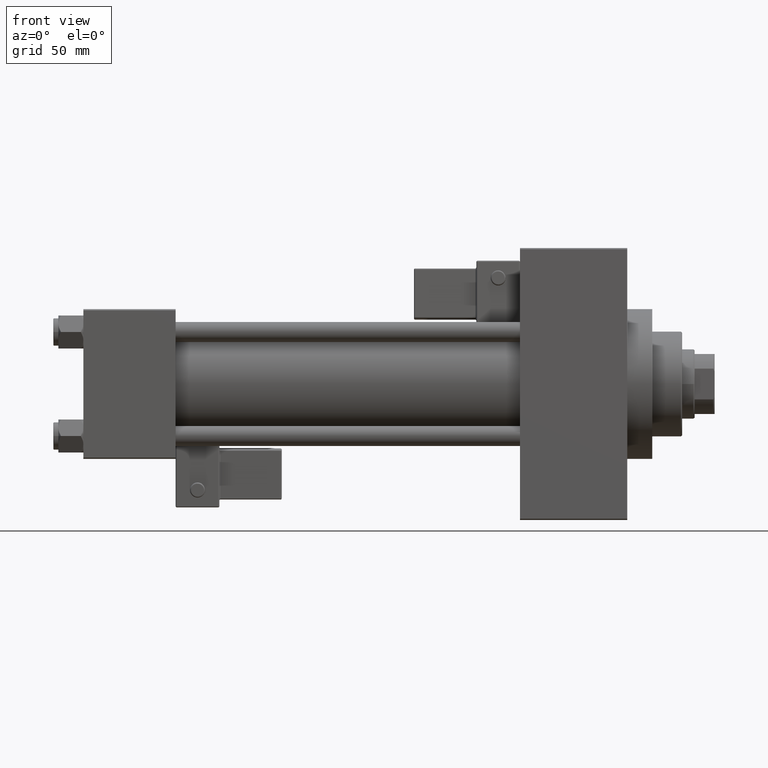
[diagram: clean part render]
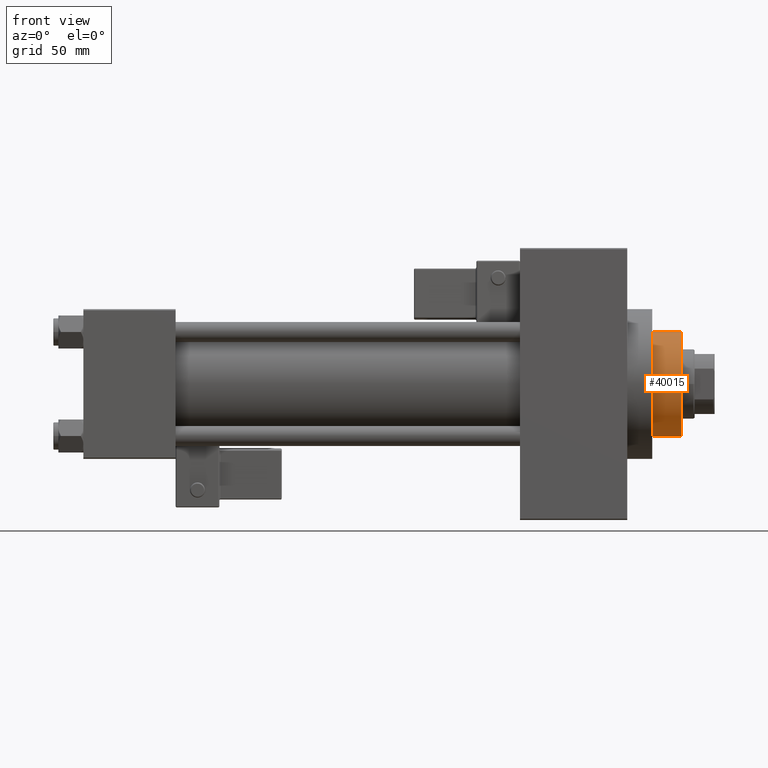
[diagram: same view with one face highlighted and labeled with its STEP entity id]
A machine part, front view. The second image highlights one B-rep face of the part: STEP entity #40015.
In plain terms, the highlighted cylindrical surface (partial cylindrical patch) has radius 21 mm, axis along (-1, 0, 0).
Its self-contained STEP definition (entity closure, byte-faithful):
#41 = VECTOR ( 'NONE', #47984, 1000.000000000000000 ) ;
#3482 = CARTESIAN_POINT ( 'NONE',  ( 0.000000000000000000, 0.000000000000000000, 55.26000000000000512 ) ) ;
#5403 = VERTEX_POINT ( 'NONE', #46979 ) ;
#6101 = ORIENTED_EDGE ( 'NONE', *, *, #31831, .T. ) ;
#6659 = VERTEX_POINT ( 'NONE', #28899 ) ;
#6997 = CYLINDRICAL_SURFACE ( 'NONE', #34660, 21.00000000000000000 ) ;
#8291 = VERTEX_POINT ( 'NONE', #9699 ) ;
#9006 = CARTESIAN_POINT ( 'NONE',  ( 0.000000000000000000, 0.000000000000000000, 54.75999999999999091 ) ) ;
#9680 = LINE ( 'NONE', #41088, #32086 ) ;
#9699 = CARTESIAN_POINT ( 'NONE',  ( -21.00000000000000000, 0.000000000000000000, 43.25999999999999801 ) ) ;
#10906 = EDGE_CURVE ( 'NONE', #37334, #5403, #44245, .T. ) ;
#12908 = AXIS2_PLACEMENT_3D ( 'NONE', #42739, #46773, #38479 ) ;
#13110 = CIRCLE ( 'NONE', #34767, 21.00000000000000000 ) ;
#14400 = CARTESIAN_POINT ( 'NONE',  ( 0.000000000000000000, 0.000000000000000000, 43.25999999999999801 ) ) ;
#16369 = AXIS2_PLACEMENT_3D ( 'NONE', #14400, #17926, #40304 ) ;
#16902 = CARTESIAN_POINT ( 'NONE',  ( -21.00000000000000000, 0.000000000000000000, 54.75999999999999091 ) ) ;
#16920 = ORIENTED_EDGE ( 'NONE', *, *, #43700, .T. ) ;
#17530 = EDGE_LOOP ( 'NONE', ( #43866, #6101, #23350, #41281, #16920, #39912 ) ) ;
#17926 = DIRECTION ( 'NONE',  ( 0.000000000000000000, 0.000000000000000000, 1.000000000000000000 ) ) ;
#20592 = DIRECTION ( 'NONE',  ( 1.000000000000000000, 0.000000000000000000, 0.000000000000000000 ) ) ;
#21507 = VERTEX_POINT ( 'NONE', #16902 ) ;
#23350 = ORIENTED_EDGE ( 'NONE', *, *, #37647, .T. ) ;
#24206 = VERTEX_POINT ( 'NONE', #27918 ) ;
#25558 = CARTESIAN_POINT ( 'NONE',  ( 20.96385542168674831, 1.231570484631382412, 43.25999999999999801 ) ) ;
#27918 = CARTESIAN_POINT ( 'NONE',  ( 21.00000000000000000, 2.571758278209441661E-15, 54.75999999999999091 ) ) ;
#28363 = DIRECTION ( 'NONE',  ( 0.000000000000000000, 0.000000000000000000, -1.000000000000000000 ) ) ;
#28899 = CARTESIAN_POINT ( 'NONE',  ( 21.00000000000000000, 2.571758278209441661E-15, 43.25999999999999801 ) ) ;
#29356 = CARTESIAN_POINT ( 'NONE',  ( -21.00000000000000000, 0.000000000000000000, 55.26000000000000512 ) ) ;
#30113 = FACE_OUTER_BOUND ( 'NONE', #17530, .T. ) ;
#31353 = AXIS2_PLACEMENT_3D ( 'NONE', #42089, #46111, #41342 ) ;
#31831 = EDGE_CURVE ( 'NONE', #24206, #6659, #9680, .T. ) ;
#32086 = VECTOR ( 'NONE', #36578, 1000.000000000000000 ) ;
#33695 = EDGE_CURVE ( 'NONE', #21507, #8291, #36417, .T. ) ;
#33810 = CIRCLE ( 'NONE', #31353, 21.00000000000000000 ) ;
#34660 = AXIS2_PLACEMENT_3D ( 'NONE', #3482, #41434, #48994 ) ;
#34767 = AXIS2_PLACEMENT_3D ( 'NONE', #9006, #28363, #20592 ) ;
#36417 = LINE ( 'NONE', #29356, #41 ) ;
#36578 = DIRECTION ( 'NONE',  ( -0.000000000000000000, -0.000000000000000000, -1.000000000000000000 ) ) ;
#37334 = VERTEX_POINT ( 'NONE', #25558 ) ;
#37647 = EDGE_CURVE ( 'NONE', #6659, #37334, #33810, .T. ) ;
#38479 = DIRECTION ( 'NONE',  ( 1.000000000000000000, 0.000000000000000000, 0.000000000000000000 ) ) ;
#39912 = ORIENTED_EDGE ( 'NONE', *, *, #33695, .F. ) ;
#40015 = ADVANCED_FACE ( 'NONE', ( #30113 ), #6997, .T. ) ;
#40304 = DIRECTION ( 'NONE',  ( 1.000000000000000000, 0.000000000000000000, 0.000000000000000000 ) ) ;
#41088 = CARTESIAN_POINT ( 'NONE',  ( 21.00000000000000000, 2.571758278209441661E-15, 55.26000000000000512 ) ) ;
#41281 = ORIENTED_EDGE ( 'NONE', *, *, #10906, .T. ) ;
#41342 = DIRECTION ( 'NONE',  ( 1.000000000000000000, 0.000000000000000000, 0.000000000000000000 ) ) ;
#41434 = DIRECTION ( 'NONE',  ( -0.000000000000000000, -0.000000000000000000, -1.000000000000000000 ) ) ;
#42089 = CARTESIAN_POINT ( 'NONE',  ( 0.000000000000000000, 0.000000000000000000, 43.25999999999999801 ) ) ;
#42739 = CARTESIAN_POINT ( 'NONE',  ( 0.000000000000000000, 0.000000000000000000, 43.25999999999999801 ) ) ;
#43146 = EDGE_CURVE ( 'NONE', #21507, #24206, #13110, .T. ) ;
#43700 = EDGE_CURVE ( 'NONE', #5403, #8291, #44454, .T. ) ;
#43866 = ORIENTED_EDGE ( 'NONE', *, *, #43146, .T. ) ;
#44245 = CIRCLE ( 'NONE', #12908, 21.00000000000000000 ) ;
#44454 = CIRCLE ( 'NONE', #16369, 21.00000000000000000 ) ;
#46111 = DIRECTION ( 'NONE',  ( 0.000000000000000000, 0.000000000000000000, 1.000000000000000000 ) ) ;
#46773 = DIRECTION ( 'NONE',  ( 0.000000000000000000, 0.000000000000000000, 1.000000000000000000 ) ) ;
#46979 = CARTESIAN_POINT ( 'NONE',  ( -20.96385542168674831, 1.231570484631382412, 43.25999999999999801 ) ) ;
#47984 = DIRECTION ( 'NONE',  ( -0.000000000000000000, -0.000000000000000000, -1.000000000000000000 ) ) ;
#48994 = DIRECTION ( 'NONE',  ( -1.000000000000000000, 0.000000000000000000, 0.000000000000000000 ) ) ;